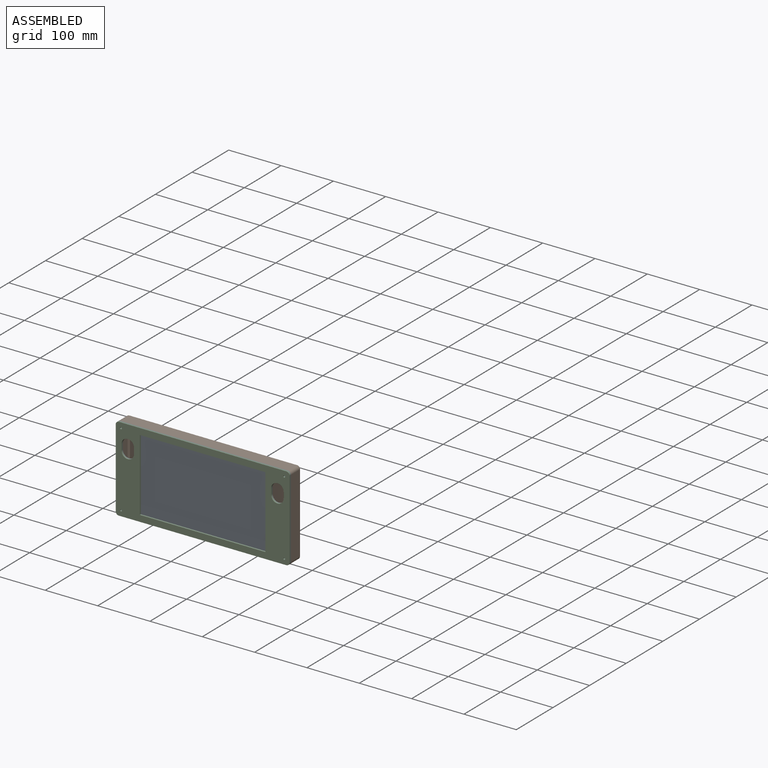
[diagram: assembled view]
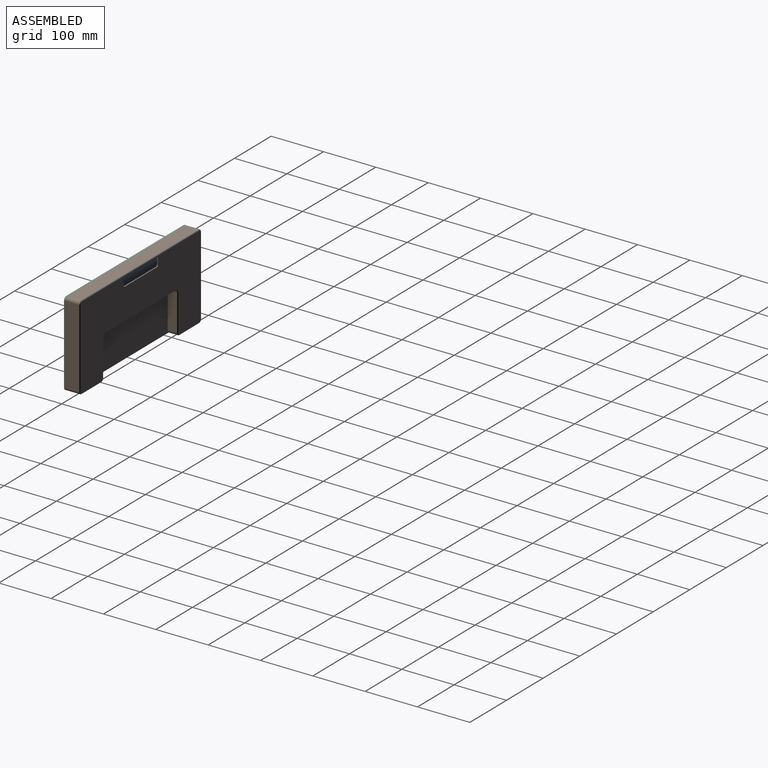
[diagram: assembled view, second angle]
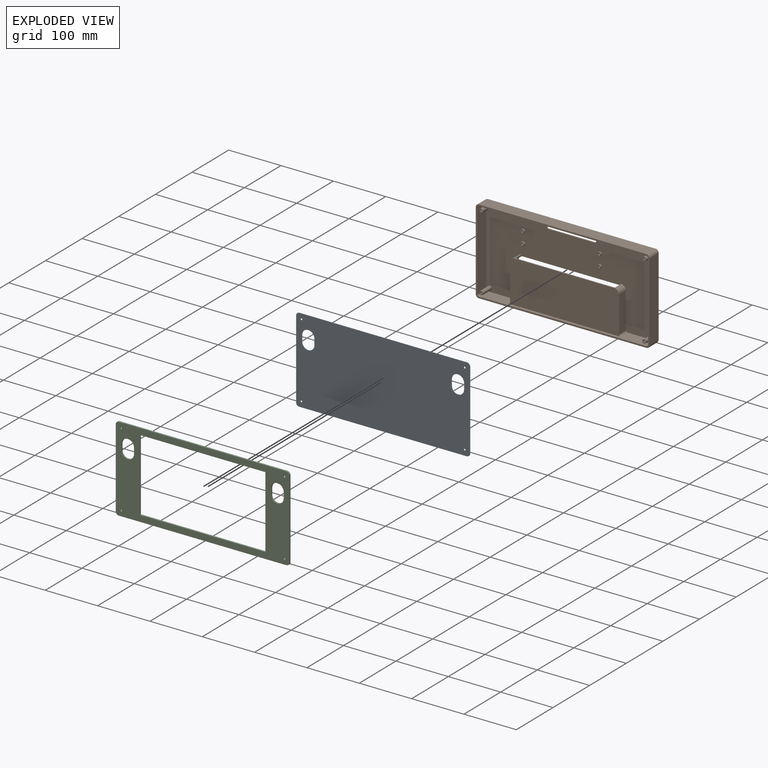
[diagram: exploded view]
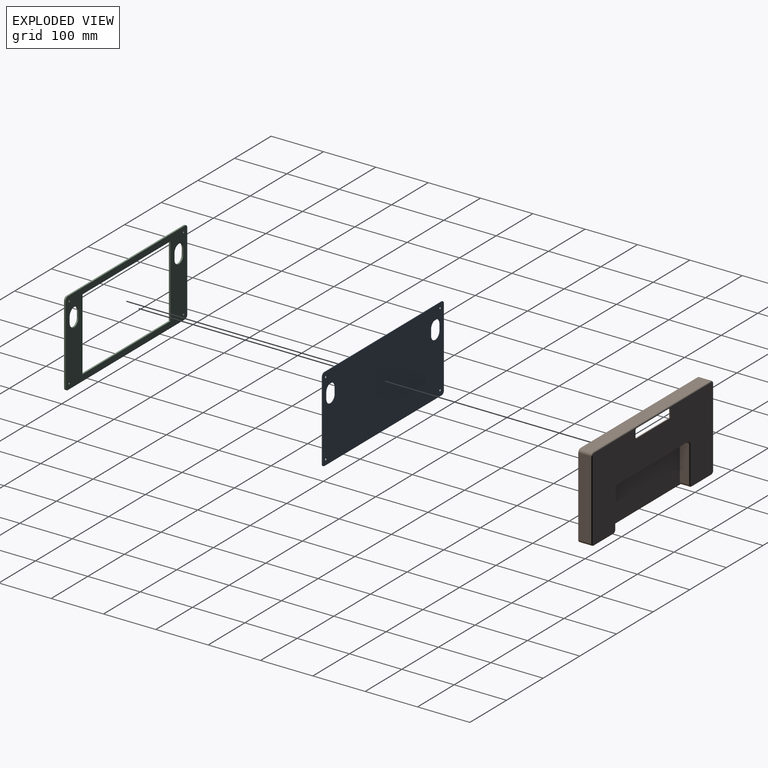
[diagram: exploded view, second angle]
ASSEMBLY  parts=3 mates=2
PART A: 22 faces, bbox 332x1x162 mm
  f0: cylinder r=6mm len=6mm, axis (0,1,0), area 9.4mm2, adj f1,f19,f20,f21
  f1: plane 320x1mm, normal (0,0,1), area 320mm2, adj f0,f2,f20,f21
  f2: cylinder r=6mm len=6mm, axis (0,1,0), area 9.4mm2, adj f1,f3,f20,f21
  f3: plane 150x1mm, normal (-1,0,0), area 150mm2, adj f2,f4,f20,f21
  f4: cylinder r=6mm len=6mm, axis (0,1,0), area 9.4mm2, adj f3,f5,f20,f21
  f5: plane 320x1mm, normal (0,0,-1), area 320mm2, adj f4,f6,f20,f21
  f6: cylinder r=6mm len=6mm, axis (0,1,0), area 9.4mm2, adj f5,f19,f20,f21
  f7: cylinder r=12mm len=24mm, axis (0,1,0), area 37.7mm2, adj f8,f13,f20,f21
  f8: plane 11x1mm, normal (1,0,0), area 11mm2, adj f7,f9,f20,f21
  f9: cylinder r=12mm len=24mm, axis (0,1,0), area 37.7mm2, adj f8,f13,f20,f21
  f10: cylinder r=12mm len=24mm, axis (0,1,0), area 37.7mm2, adj f11,f14,f20,f21
  f11: plane 11x1mm, normal (-1,0,0), area 11mm2, adj f10,f12,f20,f21
  f12: cylinder r=12mm len=24mm, axis (0,1,0), area 37.7mm2, adj f11,f14,f20,f21
  f13: plane 11x1mm, normal (-1,0,0), area 11mm2, adj f7,f9,f20,f21
  f14: plane 11x1mm, normal (1,0,0), area 11mm2, adj f10,f12,f20,f21
  f15: cylinder r=1.75mm len=3.5mm, axis (0,1,0), area 11mm2, adj f20,f21
  f16: cylinder r=1.75mm len=3.5mm, axis (0,1,0), area 11mm2, adj f20,f21
  f17: cylinder r=1.75mm len=3.5mm, axis (0,1,0), area 11mm2, adj f20,f21
  f18: cylinder r=1.75mm len=3.5mm, axis (0,1,0), area 11mm2, adj f20,f21
  f19: plane 150x1mm, normal (1,0,0), area 150mm2, adj f0,f6,f20,f21
  f20: plane 332x162mm, normal (0,-1,0), area 52281.8mm2, adj f0,f1,f2,f3,f4,f5,f6,f7
  f21: plane 332x162mm, normal (0,1,0), area 52281.8mm2, adj f0,f1,f2,f3,f4,f5,f6,f7
PART B: 102 faces, bbox 333x26.2x163 mm
  f0: plane 326x156mm, normal (0,-1,0), area 32596.3mm2, adj f8,f9,f10,f11,f12,f13,f14,f15
  f1: plane 162x6mm, normal (0,-1,0), area 1.6mm2, adj f43,f44,f45,f78,f80,f82
  f2: cylinder r=6mm len=24.2mm, axis (0,1,0), area 0.2mm2, adj f3,f7,f42,f70,f74
  f3: plane 53x24.2mm, normal (0,0,-1), area 1282.6mm2, adj f2,f43,f70,f76
  f4: plane 319.99x24.2mm, normal (0,0,1), area 7743.8mm2, adj f5,f45,f70,f84
  f5: cylinder r=6mm len=24.2mm, axis (0,1,0), area 0.2mm2, adj f4,f19,f70,f86
  f6: cylinder r=6mm len=24.2mm, axis (0,1,0), area 0.2mm2, adj f7,f21,f70,f83
  f7: plane 266.99x24.2mm, normal (0,0,-1), area 2395.3mm2, adj f2,f6,f22,f70,f81,f87
  f8: plane 320x26.2mm, normal (0,0,-1), area 7921.2mm2, adj f0,f9,f15,f17,f32,f33,f70
  f9: cylinder r=3mm len=3mm, axis (0,1,0), area 9.4mm2, adj f0,f8,f10,f17
  f10: plane 11.54x2mm, normal (-1,0,0), area 23.1mm2, adj f0,f9,f11,f17
  f11: cylinder r=3mm len=3mm, axis (0,1,0), area 9.4mm2, adj f0,f10,f12,f17
  f12: plane 88.6x2mm, normal (0,0,1), area 177.2mm2, adj f0,f11,f13,f17
  f13: cylinder r=3mm len=3mm, axis (0,1,0), area 9.4mm2, adj f0,f12,f14,f17
  f14: plane 11.54x2mm, normal (1,0,0), area 23.1mm2, adj f0,f13,f15,f17
  f15: cylinder r=3mm len=3mm, axis (0,1,0), area 9.4mm2, adj f0,f8,f14,f17
  f16: plane 81x11.99mm, normal (0,-1,0), area 0.8mm2, adj f22,f23,f24,f75,f77,f79
  f17: plane 328x158mm, normal (0,1,0), area 33493.4mm2, adj f8,f9,f10,f11,f12,f13,f14,f15
  f18: plane 81x11.99mm, normal (0,1,0), area 0.8mm2, adj f40,f41,f42,f71,f72,f74
  f19: cylinder r=6mm len=24.2mm, axis (0,1,0), area 228.1mm2, adj f5,f20,f46,f70
  f20: plane 150x24.2mm, normal (-1,0,0), area 3630mm2, adj f19,f21,f46,f70
  f21: cylinder r=6mm len=24.2mm, axis (0,1,0), area 228.1mm2, adj f6,f20,f46,f70
  f22: cylinder r=6mm len=19mm, axis (0,1,0), area 165.1mm2, adj f7,f16,f23,f69,f87
  f23: plane 69x17mm, normal (1,0,0), area 1173mm2, adj f16,f22,f24,f69
  f24: cylinder r=6mm len=17mm, axis (0,1,0), area 162.3mm2, adj f16,f23,f25,f69,f89
  f25: plane 15x3mm, normal (1,0,0), area 45mm2, adj f0,f24,f26,f89
  f26: cylinder r=9mm len=19mm, axis (0,1,0), area 268.6mm2, adj f0,f25,f27,f67,f68
  f27: plane 69x19mm, normal (-1,0,0), area 1311mm2, adj f0,f26,f28,f68
  f28: cylinder r=3mm len=19mm, axis (0,1,0), area 89.5mm2, adj f0,f27,f29,f68
  f29: plane 320x24.2mm, normal (0,0,1), area 3678mm2, adj f0,f28,f30,f35,f36,f68,f70
  f30: cylinder r=3mm len=24.2mm, axis (0,1,0), area 114mm2, adj f0,f29,f31,f70
  f31: plane 150x24.2mm, normal (1,0,0), area 3630mm2, adj f0,f30,f32,f70
  f32: cylinder r=3mm len=24.2mm, axis (0,1,0), area 114mm2, adj f0,f8,f31,f70
  f33: cylinder r=3mm len=24.2mm, axis (0,1,0), area 114mm2, adj f0,f8,f34,f70
  f34: plane 150x24.2mm, normal (-1,0,0), area 3630mm2, adj f0,f33,f35,f70
  f35: cylinder r=3mm len=24.2mm, axis (0,1,0), area 114mm2, adj f0,f29,f34,f70
  f36: cylinder r=3mm len=19mm, axis (0,1,0), area 89.5mm2, adj f0,f29,f37,f68
  f37: plane 69x19mm, normal (1,0,0), area 1311mm2, adj f0,f36,f38,f68
  f38: cylinder r=9mm len=19mm, axis (0,1,0), area 268.6mm2, adj f0,f37,f39,f67,f68
  f39: plane 15x3mm, normal (-1,0,0), area 45mm2, adj f0,f38,f40,f88
  f40: cylinder r=6mm len=17mm, axis (0,1,0), area 161.1mm2, adj f18,f39,f41,f69,f73,f88
  f41: plane 69x17mm, normal (-1,0,0), area 1173mm2, adj f18,f40,f42,f69
  f42: cylinder r=6mm len=19mm, axis (0,1,0), area 165.3mm2, adj f2,f18,f41,f69,f87
  f43: cylinder r=6mm len=24.2mm, axis (0,1,0), area 227.8mm2, adj f1,f3,f44,f70
  f44: plane 150x24.2mm, normal (1,0,0), area 3630mm2, adj f1,f43,f45,f70
  f45: cylinder r=6mm len=24.2mm, axis (0,1,0), area 228.1mm2, adj f1,f4,f44,f70,f84
  f46: plane 162x6mm, normal (0,1,0), area 1.6mm2, adj f19,f20,f21,f83,f85,f86
  f47: cylinder r=3.75mm len=24.2mm, axis (0,1,0), area 570.2mm2, adj f0,f90
  f48: cylinder r=3.75mm len=24.2mm, axis (0,1,0), area 570.2mm2, adj f0,f93
  f49: cylinder r=3.75mm len=24.2mm, axis (0,1,0), area 570.2mm2, adj f0,f96
  f50: cylinder r=3.75mm len=24.2mm, axis (0,1,0), area 570.2mm2, adj f0,f99
  f51: cylinder r=1.75mm len=3.5mm, axis (0,1,0), area 33mm2, adj f53,f54
  f52: cylinder r=3.75mm len=7.5mm, axis (0,1,0), area 70.7mm2, adj f0,f53
  f53: plane 7.5x7.5mm, normal (0,-1,0), area 34.6mm2, adj f51,f52
  f54: plane 3.5x3.5mm, normal (0,-1,0), area 9.6mm2, adj f51
  f55: cylinder r=1.75mm len=3.5mm, axis (0,1,0), area 33mm2, adj f57,f58
  f56: cylinder r=3.75mm len=7.5mm, axis (0,1,0), area 70.7mm2, adj f0,f57
  f57: plane 7.5x7.5mm, normal (0,-1,0), area 34.6mm2, adj f55,f56
  f58: plane 3.5x3.5mm, normal (0,-1,0), area 9.6mm2, adj f55
  f59: cylinder r=1.75mm len=3.5mm, axis (0,1,0), area 33mm2, adj f61,f62
  f60: cylinder r=3.75mm len=7.5mm, axis (0,1,0), area 70.7mm2, adj f0,f61
  f61: plane 7.5x7.5mm, normal (0,-1,0), area 34.6mm2, adj f59,f60
  f62: plane 3.5x3.5mm, normal (0,-1,0), area 9.6mm2, adj f59
  f63: cylinder r=1.75mm len=3.5mm, axis (0,1,0), area 33mm2, adj f65,f66
  f64: cylinder r=3.75mm len=7.5mm, axis (0,1,0), area 70.7mm2, adj f0,f65
  f65: plane 7.5x7.5mm, normal (0,-1,0), area 34.6mm2, adj f63,f64
  f66: plane 3.5x3.5mm, normal (0,-1,0), area 9.6mm2, adj f63
  f67: plane 190x4mm, normal (0,0,1), area 381.7mm2, adj f26,f38,f68,f69,f88,f89
  f68: plane 214x81mm, normal (0,-1,0), area 16817.1mm2, adj f26,f27,f28,f29,f36,f37,f38,f67
  f69: plane 205.06x82mm, normal (0,1,0), area 16503.9mm2, adj f22,f23,f24,f40,f41,f42,f67,f87
  f70: plane 332x162mm, normal (0,-1,0), area 2904.8mm2, adj f2,f3,f4,f5,f6,f7,f8,f19
  f71: torus R=8mm, axis (0,-1,0), area 33.2mm2, adj f17,f18,f72,f73
  f72: cylinder r=2mm len=69mm, axis (0,0,-1), area 216.8mm2, adj f17,f18,f71,f74
  f73: cylinder r=2mm len=190mm, axis (1,0,0), area 596.9mm2, adj f0,f17,f40,f71,f75
  f74: torus R=4mm, axis (0,-1,0), area 26mm2, adj f2,f17,f18,f72,f76
  f75: torus R=8mm, axis (0,-1,0), area 33.2mm2, adj f0,f16,f17,f73,f77
  f76: cylinder r=2mm len=53mm, axis (1,0,0), area 166.5mm2, adj f3,f17,f74,f78
  f77: cylinder r=2mm len=69mm, axis (0,0,1), area 216.8mm2, adj f16,f17,f75,f79
  f78: torus R=4mm, axis (0,-1,0), area 26mm2, adj f1,f17,f76,f80
  f79: torus R=4mm, axis (0,-1,0), area 26mm2, adj f16,f17,f77,f81
  f80: cylinder r=2mm len=150mm, axis (0,0,1), area 471.2mm2, adj f1,f17,f78,f82
  f81: cylinder r=2mm len=53mm, axis (1,0,0), area 166.5mm2, adj f7,f17,f79,f83
  f82: torus R=4mm, axis (0,-1,0), area 26mm2, adj f1,f17,f80,f84
  f83: torus R=4mm, axis (0,-1,0), area 26mm2, adj f6,f17,f46,f81,f85
  f84: cylinder r=2mm len=320mm, axis (-1,0,0), area 1005.3mm2, adj f4,f17,f45,f82,f86
  f85: cylinder r=2mm len=150mm, axis (0,0,-1), area 471.2mm2, adj f17,f46,f83,f86
  f86: torus R=4mm, axis (0,-1,0), area 26mm2, adj f5,f17,f46,f84,f85
  f87: cylinder r=2mm len=213.99mm, axis (1,0,0), area 658.2mm2, adj f7,f22,f42,f69
  f88: cylinder r=2mm len=3.34mm, axis (0,0,1), area 10mm2, adj f39,f40,f67,f69
  f89: cylinder r=2mm len=3.34mm, axis (0,0,-1), area 10mm2, adj f24,f25,f67,f69
  f90: plane 7.5x7.5mm, normal (0,-1,0), area 34.6mm2, adj f47,f92
  f91: plane 3.5x3.5mm, normal (0,-1,0), area 9.6mm2, adj f92
  f92: cylinder r=1.75mm len=24.2mm, axis (0,1,0), area 266.1mm2, adj f90,f91
  f93: plane 7.5x7.5mm, normal (0,-1,0), area 34.6mm2, adj f48,f95
  f94: plane 3.5x3.5mm, normal (0,-1,0), area 9.6mm2, adj f95
  f95: cylinder r=1.75mm len=24.2mm, axis (0,1,0), area 266.1mm2, adj f93,f94
  f96: plane 7.5x7.5mm, normal (0,-1,0), area 34.6mm2, adj f49,f98
  f97: plane 3.5x3.5mm, normal (0,-1,0), area 9.6mm2, adj f98
  f98: cylinder r=1.75mm len=24.2mm, axis (0,1,0), area 266.1mm2, adj f96,f97
  f99: plane 7.5x7.5mm, normal (0,-1,0), area 34.6mm2, adj f50,f101
  f100: plane 3.5x3.5mm, normal (0,-1,0), area 9.6mm2, adj f101
  f101: cylinder r=1.75mm len=24.2mm, axis (0,1,0), area 266.1mm2, adj f99,f100
PART C: 26 faces, bbox 332x3x162 mm
  f0: cylinder r=12mm len=24mm, axis (0,1,0), area 113.1mm2, adj f1,f23,f24,f25
  f1: plane 11x3mm, normal (-1,0,0), area 33mm2, adj f0,f2,f24,f25
  f2: cylinder r=12mm len=24mm, axis (0,1,0), area 113.1mm2, adj f1,f23,f24,f25
  f3: cylinder r=6mm len=6mm, axis (0,1,0), area 28.3mm2, adj f4,f16,f24,f25
  f4: plane 320x3mm, normal (0,0,1), area 960mm2, adj f3,f5,f24,f25
  f5: cylinder r=6mm len=6mm, axis (0,1,0), area 28.3mm2, adj f4,f6,f24,f25
  f6: plane 150x3mm, normal (-1,0,0), area 450mm2, adj f5,f7,f24,f25
  f7: cylinder r=6mm len=6mm, axis (0,1,0), area 28.3mm2, adj f6,f8,f24,f25
  f8: plane 320x3mm, normal (0,0,-1), area 960mm2, adj f7,f9,f24,f25
  f9: cylinder r=6mm len=6mm, axis (0,1,0), area 28.3mm2, adj f8,f16,f24,f25
  f10: plane 240x3mm, normal (0,0,-1), area 720mm2, adj f11,f17,f24,f25
  f11: plane 138x3mm, normal (-1,0,0), area 414mm2, adj f10,f12,f24,f25
  f12: plane 240x3mm, normal (0,0,1), area 720mm2, adj f11,f17,f24,f25
  f13: cylinder r=12mm len=24mm, axis (0,1,0), area 113.1mm2, adj f14,f18,f24,f25
  f14: plane 11x3mm, normal (1,0,0), area 33mm2, adj f13,f15,f24,f25
  f15: cylinder r=12mm len=24mm, axis (0,1,0), area 113.1mm2, adj f14,f18,f24,f25
  f16: plane 150x3mm, normal (1,0,0), area 450mm2, adj f3,f9,f24,f25
  f17: plane 138x3mm, normal (1,0,0), area 414mm2, adj f10,f12,f24,f25
  f18: plane 11x3mm, normal (-1,0,0), area 33mm2, adj f13,f15,f24,f25
  f19: cylinder r=1.75mm len=3.5mm, axis (0,1,0), area 33mm2, adj f24,f25
  f20: cylinder r=1.75mm len=3.5mm, axis (0,1,0), area 33mm2, adj f24,f25
  f21: cylinder r=1.75mm len=3.5mm, axis (0,1,0), area 33mm2, adj f24,f25
  f22: cylinder r=1.75mm len=3.5mm, axis (0,1,0), area 33mm2, adj f24,f25
  f23: plane 11x3mm, normal (1,0,0), area 33mm2, adj f0,f2,f24,f25
  f24: plane 332x162mm, normal (0,-1,0), area 19161.8mm2, adj f0,f1,f2,f3,f4,f5,f6,f7
  f25: plane 332x162mm, normal (0,1,0), area 19161.8mm2, adj f0,f1,f2,f3,f4,f5,f6,f7
PLACE A t=(2.65,-13.38,-3.32)mm
PLACE B t=(2.65,12.82,-3.32)mm fixed
PLACE C t=(223.78,-14.38,208.48)mm
MATE fastened B.f70 <-> A.f21  axis (0,-1,0) through (-157.35,-13.38,77.68)mm
MATE fastened A.f20 <-> C.f25  axis (0,-1,0) through (-157.35,-14.38,77.68)mm
